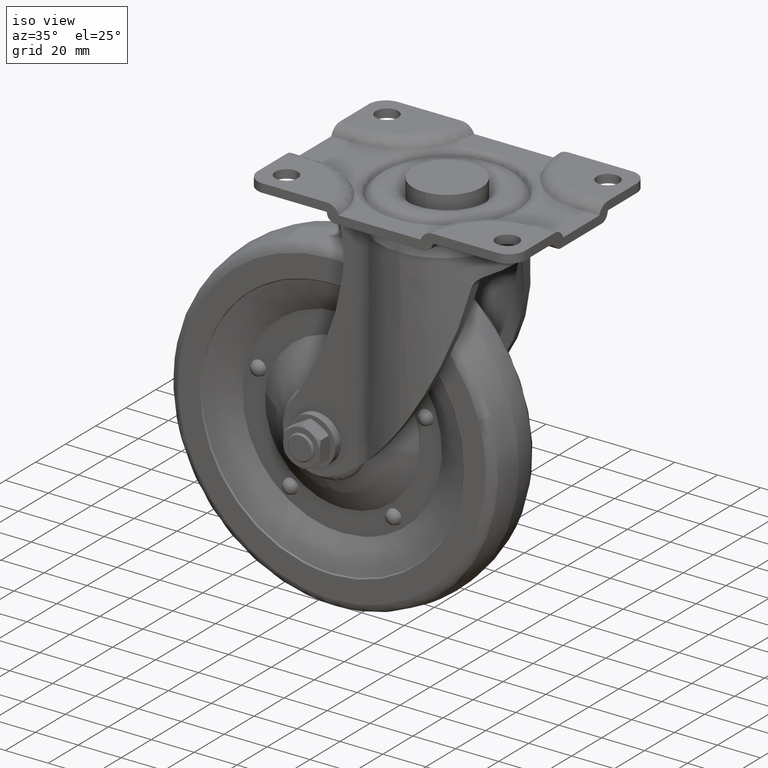
[diagram: clean part render]
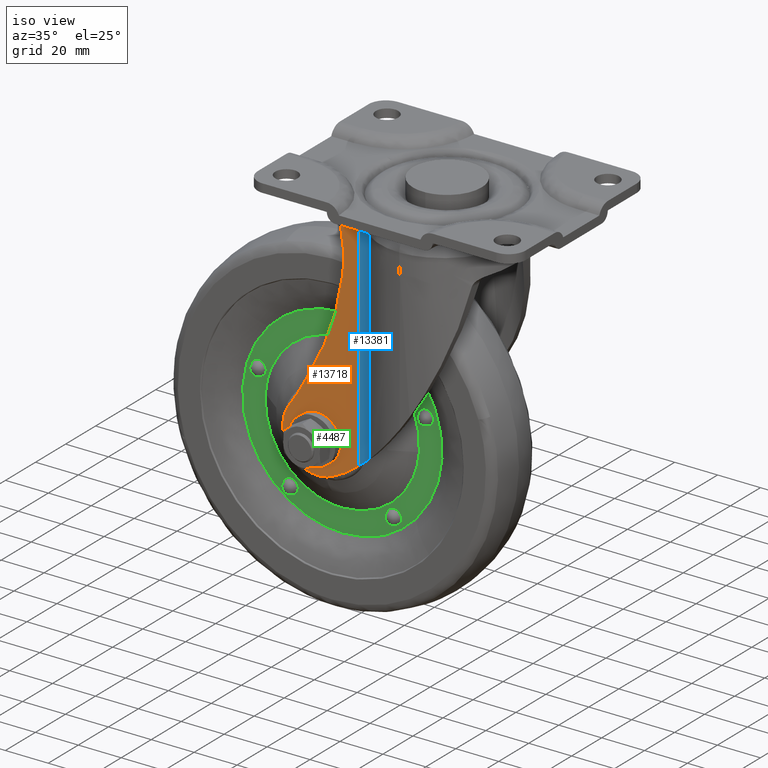
[diagram: same view with three faces highlighted in distinct colors, each labeled with its STEP entity id]
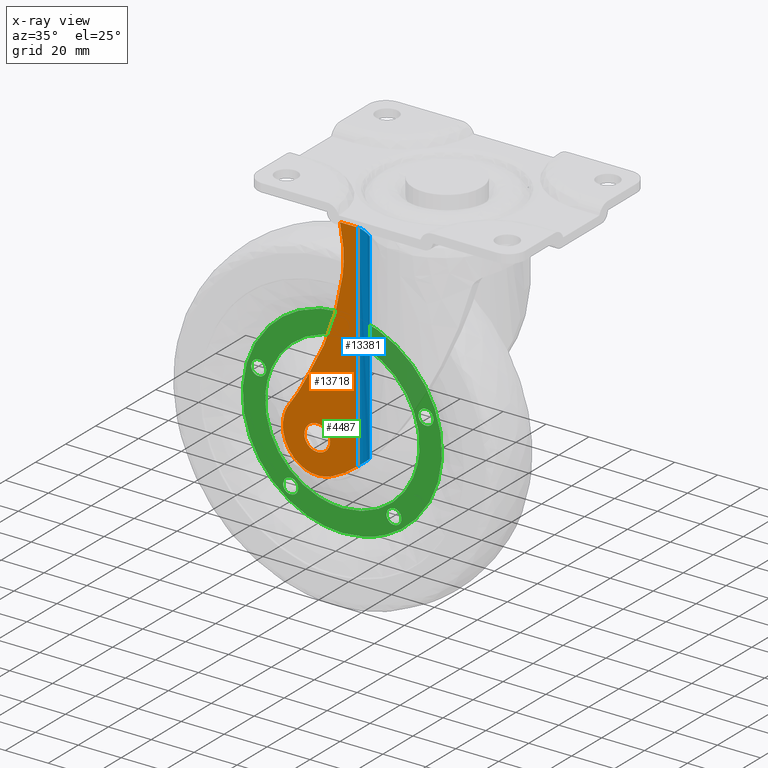
[diagram: x-ray of the same camera — body ghosted, the three highlighted faces saturated]
A machine part, iso view with three faces highlighted in distinct colors.
The next image is the same camera in x-ray (body ghosted, the three faces saturated) — at least one of them is partly hidden behind the body in this view.
Their STEP definitions:

[orange] entity #13718 — the highlighted face is a freeform B-spline surface patch.
#10194=CARTESIAN_POINT('',(-50.000999999999998,-23.722238212965209,-112.500000000000000));
#10195=VERTEX_POINT('',#10194);
#10196=CARTESIAN_POINT('',(-44.470833033914992,-23.719572744459128,-106.517499080303100));
#10197=VERTEX_POINT('',#10196);
#10198=CARTESIAN_POINT('',(-50.000999999999998,-23.722238212965209,-112.500000000000000));
#10199=CARTESIAN_POINT('',(-50.000999999999983,-23.722238212965205,-106.952732659979660));
#10200=CARTESIAN_POINT('',(-44.470833033914992,-23.719572744458972,-106.517499080303110));
#10208=(BOUNDED_CURVE()B_SPLINE_CURVE(2,(#10198,#10199,#10200),.UNSPECIFIED.,.F.,.U.)B_SPLINE_CURVE_WITH_KNOTS((3,3),(0.0,0.236331300619810),.UNSPECIFIED.)CURVE()GEOMETRIC_REPRESENTATION_ITEM()RATIONAL_B_SPLINE_CURVE((1.0,0.723120658620378,0.969723356144775))REPRESENTATION_ITEM(''));
#10209=EDGE_CURVE('',#10195,#10197,#10208,.T.);
#10211=CARTESIAN_POINT('',(-43.529166966085022,-23.719118873669270,-118.482500919696900));
#10212=VERTEX_POINT('',#10211);
#10213=CARTESIAN_POINT('',(-43.529166966085008,-23.719118873669430,-118.482500919696960));
#10214=CARTESIAN_POINT('',(-43.764220067619831,-23.719232166205309,-118.501000000000030));
#10215=CARTESIAN_POINT('',(-44.0,-23.719345809064201,-118.501000000000000));
#10216=CARTESIAN_POINT('',(-50.000999999999976,-23.722238212965209,-118.501000000000000));
#10217=CARTESIAN_POINT('',(-50.000999999999998,-23.722238212965209,-112.500000000000000));
#10225=(BOUNDED_CURVE()B_SPLINE_CURVE(2,(#10213,#10214,#10215,#10216,#10217),.UNSPECIFIED.,.F.,.U.)B_SPLINE_CURVE_WITH_KNOTS((3,2,3),(0.736331300619810,0.750000000000000,1.0),.UNSPECIFIED.)CURVE()GEOMETRIC_REPRESENTATION_ITEM()RATIONAL_B_SPLINE_CURVE((0.969723356144775,0.983986122566170,1.0,0.707106781186548,1.0))REPRESENTATION_ITEM(''));
#10226=EDGE_CURVE('',#10212,#10195,#10225,.T.);
#10293=CARTESIAN_POINT('',(-37.999000000000002,-23.716453405163190,-112.500000000000000));
#10294=VERTEX_POINT('',#10293);
#10295=CARTESIAN_POINT('',(-44.470833033915000,-23.719572744458976,-106.517499080303040));
#10296=CARTESIAN_POINT('',(-44.235779932380176,-23.719459451923090,-106.499000000000020));
#10297=CARTESIAN_POINT('',(-44.0,-23.719345809064201,-106.499000000000000));
#10298=CARTESIAN_POINT('',(-37.998999999999995,-23.716453405163186,-106.498999999999980));
#10299=CARTESIAN_POINT('',(-37.999000000000002,-23.716453405163190,-112.500000000000000));
#10307=(BOUNDED_CURVE()B_SPLINE_CURVE(2,(#10295,#10296,#10297,#10298,#10299),.UNSPECIFIED.,.F.,.U.)B_SPLINE_CURVE_WITH_KNOTS((3,2,3),(0.236331300619810,0.250000000000000,0.500000000000000),.UNSPECIFIED.)CURVE()GEOMETRIC_REPRESENTATION_ITEM()RATIONAL_B_SPLINE_CURVE((0.969723356144775,0.983986122566170,1.0,0.707106781186548,1.0))REPRESENTATION_ITEM(''));
#10308=EDGE_CURVE('',#10197,#10294,#10307,.T.);
#10342=CARTESIAN_POINT('',(-37.999000000000002,-23.716453405163190,-112.500000000000000));
#10343=CARTESIAN_POINT('',(-37.998999999999995,-23.716453405163190,-118.047267340020330));
#10344=CARTESIAN_POINT('',(-43.529166966085015,-23.719118873669427,-118.482500919696890));
#10352=(BOUNDED_CURVE()B_SPLINE_CURVE(2,(#10342,#10343,#10344),.UNSPECIFIED.,.F.,.U.)B_SPLINE_CURVE_WITH_KNOTS((3,3),(0.500000000000000,0.736331300619810),.UNSPECIFIED.)CURVE()GEOMETRIC_REPRESENTATION_ITEM()RATIONAL_B_SPLINE_CURVE((1.0,0.723120658620377,0.969723356144775))REPRESENTATION_ITEM(''));
#10353=EDGE_CURVE('',#10294,#10212,#10352,.T.);
#11462=CARTESIAN_POINT('',(-33.474773347300847,-23.714272786796350,-18.800000000000001));
#11463=VERTEX_POINT('',#11462);
#11495=CARTESIAN_POINT('',(-33.220387422355962,-23.714150176091248,-20.200238627534748));
#11496=VERTEX_POINT('',#11495);
#11502=CARTESIAN_POINT('',(-33.220387422355962,-23.714150176091248,-20.200238627534748));
#11503=CARTESIAN_POINT('',(-33.384632053834004,-23.714229339866034,-19.506850646848438));
#11504=CARTESIAN_POINT('',(-33.474773347300719,-23.714272786796350,-18.800000000000001));
#11512=(BOUNDED_CURVE()B_SPLINE_CURVE(2,(#11502,#11503,#11504),.UNSPECIFIED.,.F.,.U.)CURVE()GEOMETRIC_REPRESENTATION_ITEM()QUASI_UNIFORM_CURVE()RATIONAL_B_SPLINE_CURVE((1.0,0.998602557726876,1.0))REPRESENTATION_ITEM(''));
#11513=EDGE_CURVE('',#11496,#11463,#11512,.T.);
#11601=CARTESIAN_POINT('',(-32.208179906609352,-23.713662305241701,-41.071240209038450));
#11602=VERTEX_POINT('',#11601);
#11608=CARTESIAN_POINT('',(-33.220387422355998,-23.714150176091181,-20.200238627534748));
#11609=CARTESIAN_POINT('',(-30.770824674431974,-23.712969518726101,-30.541485015181134));
#11610=CARTESIAN_POINT('',(-32.208179906609338,-23.713662305241790,-41.071240209038152));
#11618=(BOUNDED_CURVE()B_SPLINE_CURVE(2,(#11608,#11609,#11610),.UNSPECIFIED.,.F.,.U.)CURVE()GEOMETRIC_REPRESENTATION_ITEM()QUASI_UNIFORM_CURVE()RATIONAL_B_SPLINE_CURVE((1.0,0.983096652336965,1.0))REPRESENTATION_ITEM(''));
#11619=EDGE_CURVE('',#11496,#11602,#11618,.T.);
#11707=CARTESIAN_POINT('',(-48.233338139935213,-23.721386222953502,-87.127121802990899));
#11708=VERTEX_POINT('',#11707);
#11714=CARTESIAN_POINT('',(-32.208179906609352,-23.713662305241701,-41.071240209038450));
#11715=CARTESIAN_POINT('',(-35.572371221970421,-23.715283801673024,-65.716589139129226));
#11716=CARTESIAN_POINT('',(-48.233338139935213,-23.721386222953502,-87.127121802990899));
#11724=(BOUNDED_CURVE()B_SPLINE_CURVE(2,(#11714,#11715,#11716),.UNSPECIFIED.,.F.,.U.)CURVE()GEOMETRIC_REPRESENTATION_ITEM()QUASI_UNIFORM_CURVE()RATIONAL_B_SPLINE_CURVE((1.0,0.980228754763720,1.0))REPRESENTATION_ITEM(''));
#11725=EDGE_CURVE('',#11602,#11708,#11724,.T.);
#11813=CARTESIAN_POINT('',(-57.959273022513003,-23.726073996990451,-103.307275449450800));
#11814=VERTEX_POINT('',#11813);
#11820=CARTESIAN_POINT('',(-48.233338139935213,-23.721386222953502,-87.127121802990899));
#11821=CARTESIAN_POINT('',(-52.496599988244910,-23.723441059680919,-95.577683142427830));
#11822=CARTESIAN_POINT('',(-57.959272530696602,-23.726073996753360,-103.307275449450800));
#11830=(BOUNDED_CURVE()B_SPLINE_CURVE(2,(#11820,#11821,#11822),.UNSPECIFIED.,.F.,.U.)CURVE()GEOMETRIC_REPRESENTATION_ITEM()QUASI_UNIFORM_CURVE()RATIONAL_B_SPLINE_CURVE((1.0,0.997263753623928,1.0))REPRESENTATION_ITEM(''));
#11831=EDGE_CURVE('',#11708,#11814,#11830,.T.);
#11903=CARTESIAN_POINT('',(-52.101891605436698,-23.723250815377298,-125.953898225679000));
#11904=VERTEX_POINT('',#11903);
#11905=CARTESIAN_POINT('',(-52.101891605436698,-23.723250815377298,-125.953898225679000));
#11906=CARTESIAN_POINT('',(-65.696403467355694,-23.729803193171271,-117.389222832711280));
#11907=CARTESIAN_POINT('',(-57.959273022513003,-23.726073996990419,-103.307275449451100));
#11915=(BOUNDED_CURVE()B_SPLINE_CURVE(2,(#11905,#11906,#11907),.UNSPECIFIED.,.F.,.U.)CURVE()GEOMETRIC_REPRESENTATION_ITEM()QUASI_UNIFORM_CURVE()RATIONAL_B_SPLINE_CURVE((1.0,0.727924426400817,1.0))REPRESENTATION_ITEM(''));
#11916=EDGE_CURVE('',#11904,#11814,#11915,.T.);
#12009=CARTESIAN_POINT('',(-36.208002370455603,-23.715590167614248,-126.457514888627200));
#12010=VERTEX_POINT('',#12009);
#12011=CARTESIAN_POINT('',(-36.208002370455603,-23.715590167614248,-126.457514888627200));
#12012=CARTESIAN_POINT('',(-44.302660923529935,-23.719491687690283,-130.867489857980160));
#12013=CARTESIAN_POINT('',(-52.101891605436677,-23.723250815377209,-125.953898225679000));
#12021=(BOUNDED_CURVE()B_SPLINE_CURVE(2,(#12011,#12012,#12013),.UNSPECIFIED.,.F.,.U.)CURVE()GEOMETRIC_REPRESENTATION_ITEM()QUASI_UNIFORM_CURVE()RATIONAL_B_SPLINE_CURVE((1.0,0.862545005258443,1.0))REPRESENTATION_ITEM(''));
#12022=EDGE_CURVE('',#12010,#11904,#12021,.T.);
#12115=CARTESIAN_POINT('',(-31.133920985200049,-23.713144526422351,-123.789671572339400));
#12116=VERTEX_POINT('',#12115);
#12117=CARTESIAN_POINT('',(-31.133920985200060,-23.713144526422351,-123.789671572339400));
#12118=CARTESIAN_POINT('',(-33.569545817006784,-23.714318465893257,-125.316480244656700));
#12119=CARTESIAN_POINT('',(-36.208002370455461,-23.715590167614270,-126.457514888627200));
#12127=(BOUNDED_CURVE()B_SPLINE_CURVE(2,(#12117,#12118,#12119),.UNSPECIFIED.,.F.,.U.)CURVE()GEOMETRIC_REPRESENTATION_ITEM()QUASI_UNIFORM_CURVE()RATIONAL_B_SPLINE_CURVE((1.0,0.997122314548111,1.0))REPRESENTATION_ITEM(''));
#12128=EDGE_CURVE('',#12116,#12010,#12127,.T.);
#13101=CARTESIAN_POINT('',(-24.846352573767749,-23.710114000276551,-18.800000000000001));
#13102=VERTEX_POINT('',#13101);
#13155=CARTESIAN_POINT('',(-24.846352573767749,-23.710114000276551,-18.800000000000001));
#13156=CARTESIAN_POINT('',(-33.474773347300847,-23.714272786796350,-18.800000000000001));
#13157=QUASI_UNIFORM_CURVE('',1,(#13155,#13156),.UNSPECIFIED.,.F.,.U.);
#13158=EDGE_CURVE('',#13102,#11463,#13157,.T.);
#13355=CARTESIAN_POINT('',(-24.846352573767700,-23.710114000276551,-119.269769394863600));
#13356=VERTEX_POINT('',#13355);
#13357=CARTESIAN_POINT('',(-24.846352573767700,-23.710114000276551,-119.269769394863600));
#13358=CARTESIAN_POINT('',(-24.846352573767749,-23.710114000276551,-18.800000000000001));
#13359=QUASI_UNIFORM_CURVE('',1,(#13357,#13358),.UNSPECIFIED.,.F.,.U.);
#13360=EDGE_CURVE('',#13356,#13102,#13359,.T.);
#13683=CARTESIAN_POINT('',(-23.087070984716970,-23.709266049446519,-133.845494408536690));
#13684=CARTESIAN_POINT('',(-61.826489107436750,-23.727937944814109,-133.845494408536690));
#13685=CARTESIAN_POINT('',(-23.087070984716970,-23.709266049446519,-13.326858118002560));
#13686=CARTESIAN_POINT('',(-61.826489107436750,-23.727937944814109,-13.326858118002560));
#13687=B_SPLINE_SURFACE_WITH_KNOTS('',1,1,((#13683,#13685),(#13684,#13686)),.UNSPECIFIED.,.F.,.F.,.U.,(2,2),(2,2),(0.0,38.739422622524792),(0.0,120.518636290534100),.UNSPECIFIED.);
#13688=ORIENTED_EDGE('',*,*,#13360,.T.);
#13689=ORIENTED_EDGE('',*,*,#13158,.T.);
#13690=ORIENTED_EDGE('',*,*,#11513,.F.);
#13691=ORIENTED_EDGE('',*,*,#11619,.T.);
#13692=ORIENTED_EDGE('',*,*,#11725,.T.);
#13693=ORIENTED_EDGE('',*,*,#11831,.T.);
#13694=ORIENTED_EDGE('',*,*,#11916,.F.);
#13695=ORIENTED_EDGE('',*,*,#12022,.F.);
#13696=ORIENTED_EDGE('',*,*,#12128,.F.);
#13697=CARTESIAN_POINT('',(-24.846352573767589,-23.710114000276569,-119.269769394863600));
#13698=CARTESIAN_POINT('',(-27.922632471548123,-23.711596727151580,-121.623624718150440));
#13699=CARTESIAN_POINT('',(-31.133920985199971,-23.713144526422390,-123.789671572339400));
#13707=(BOUNDED_CURVE()B_SPLINE_CURVE(2,(#13697,#13698,#13699),.UNSPECIFIED.,.F.,.U.)CURVE()GEOMETRIC_REPRESENTATION_ITEM()QUASI_UNIFORM_CURVE()RATIONAL_B_SPLINE_CURVE((1.0,0.999554195537226,1.0))REPRESENTATION_ITEM(''));
#13708=EDGE_CURVE('',#13356,#12116,#13707,.T.);
#13709=ORIENTED_EDGE('',*,*,#13708,.F.);
#13710=EDGE_LOOP('',(#13688,#13689,#13690,#13691,#13692,#13693,#13694,#13695,#13696,#13709));
#13711=FACE_OUTER_BOUND('',#13710,.T.);
#13712=ORIENTED_EDGE('',*,*,#10353,.T.);
#13713=ORIENTED_EDGE('',*,*,#10226,.T.);
#13714=ORIENTED_EDGE('',*,*,#10209,.T.);
#13715=ORIENTED_EDGE('',*,*,#10308,.T.);
#13716=EDGE_LOOP('',(#13712,#13713,#13714,#13715));
#13717=FACE_BOUND('',#13716,.T.);
#13718=ADVANCED_FACE('',(#13711,#13717),#13687,.F.);

[blue] entity #13381 — the highlighted face is a freeform B-spline surface patch.
#13028=CARTESIAN_POINT('',(-17.988086873891149,-25.859047059812749,-19.800000000000001));
#13029=VERTEX_POINT('',#13028);
#13101=CARTESIAN_POINT('',(-24.846352573767749,-23.710114000276551,-18.800000000000001));
#13102=VERTEX_POINT('',#13101);
#13116=CARTESIAN_POINT('',(-17.988086873891149,-25.859047059812749,-19.800000000000001));
#13117=CARTESIAN_POINT('',(-18.082739542925811,-25.793212710228541,-19.798629378533931));
#13118=CARTESIAN_POINT('',(-18.242086296300052,-25.685705538493909,-19.796499994660248));
#13119=CARTESIAN_POINT('',(-18.856763765088839,-25.292504927499859,-19.759029759211391));
#13120=CARTESIAN_POINT('',(-19.429927879434729,-24.985378432937392,-19.673115326289839));
#13121=CARTESIAN_POINT('',(-20.189474226467471,-24.644682726173670,-19.524912561331671));
#13122=CARTESIAN_POINT('',(-20.889608510286340,-24.361778073768640,-19.378207407132180));
#13123=CARTESIAN_POINT('',(-22.044213737864450,-24.012037985834120,-19.128918172890049));
#13124=CARTESIAN_POINT('',(-23.014060378983551,-23.839045567464140,-18.948438718595959));
#13125=CARTESIAN_POINT('',(-23.621363272377131,-23.771966269264251,-18.875517107857451));
#13126=CARTESIAN_POINT('',(-23.925533556721110,-23.742802847470621,-18.841596655670831));
#13127=CARTESIAN_POINT('',(-24.270055188239802,-23.721312016110790,-18.814526421018840));
#13128=CARTESIAN_POINT('',(-24.615774767755479,-23.711443660980191,-18.804845194350101));
#13129=CARTESIAN_POINT('',(-24.769482183815430,-23.710080243383551,-18.801208378814639));
#13130=CARTESIAN_POINT('',(-24.846352573767749,-23.710114000276551,-18.800000000000001));
#13131=B_SPLINE_CURVE_WITH_KNOTS('',3,(#13116,#13117,#13118,#13119,#13120,#13121,#13122,#13123,#13124,#13125,#13126,#13127,#13128,#13129,#13130),.UNSPECIFIED.,.F.,.U.,(4,1,1,1,1,1,1,1,1,1,1,1,4),(0.000013214462248,0.345966288872900,0.576603538985090,2.191056348619183,2.306371475345844,3.113592082591532,4.497408836906303,5.996540298903226,6.111861381388584,6.342495383444319,6.919081648692941,7.149716420930449,7.380350429236879),.UNSPECIFIED.);
#13132=EDGE_CURVE('',#13029,#13102,#13131,.T.);
#13333=CARTESIAN_POINT('',(-25.191792438727830,-23.715253628210110,-121.781513629735200));
#13334=CARTESIAN_POINT('',(-25.191792438727830,-23.715253628210110,-16.225462159256612));
#13335=CARTESIAN_POINT('',(-21.036223239862881,-23.593573629636392,-121.781513629735230));
#13336=CARTESIAN_POINT('',(-21.036223239862881,-23.593573629636392,-16.225462159256608));
#13337=CARTESIAN_POINT('',(-17.696020942208651,-26.068772611406011,-121.781513629735190));
#13338=CARTESIAN_POINT('',(-17.696020942208651,-26.068772611406011,-16.225462159256615));
#13346=(BOUNDED_SURFACE()B_SPLINE_SURFACE(1,2,((#13333,#13335,#13337),(#13334,#13336,#13338)),.UNSPECIFIED.,.F.,.F.,.U.)B_SPLINE_SURFACE_WITH_KNOTS((2,2),(3,3),(0.0,105.556051470478590),(0.0,8.079109483346606),.UNSPECIFIED.)GEOMETRIC_REPRESENTATION_ITEM()RATIONAL_B_SPLINE_SURFACE(((1.0,0.941045728231928,0.991857011863724),(1.0,0.941045728231928,0.991857011863724)))REPRESENTATION_ITEM('')SURFACE());
#13347=CARTESIAN_POINT('',(-17.988086873891149,-25.859047059812749,-113.639846801508200));
#13348=VERTEX_POINT('',#13347);
#13349=CARTESIAN_POINT('',(-17.988086873891149,-25.859047059812749,-19.800000000000001));
#13350=CARTESIAN_POINT('',(-17.988086873891149,-25.859047059812749,-113.639846801508200));
#13351=QUASI_UNIFORM_CURVE('',1,(#13349,#13350),.UNSPECIFIED.,.F.,.U.);
#13352=EDGE_CURVE('',#13029,#13348,#13351,.T.);
#13353=ORIENTED_EDGE('',*,*,#13352,.F.);
#13354=ORIENTED_EDGE('',*,*,#13132,.T.);
#13355=CARTESIAN_POINT('',(-24.846352573767700,-23.710114000276551,-119.269769394863600));
#13356=VERTEX_POINT('',#13355);
#13357=CARTESIAN_POINT('',(-24.846352573767700,-23.710114000276551,-119.269769394863600));
#13358=CARTESIAN_POINT('',(-24.846352573767749,-23.710114000276551,-18.800000000000001));
#13359=QUASI_UNIFORM_CURVE('',1,(#13357,#13358),.UNSPECIFIED.,.F.,.U.);
#13360=EDGE_CURVE('',#13356,#13102,#13359,.T.);
#13361=ORIENTED_EDGE('',*,*,#13360,.F.);
#13362=CARTESIAN_POINT('',(-17.988086873891149,-25.859047059812749,-113.639846801508200));
#13363=CARTESIAN_POINT('',(-18.503013529105161,-25.500859862122741,-114.092905951709600));
#13364=CARTESIAN_POINT('',(-19.033456581708709,-25.191300198795691,-114.552361744802700));
#13365=CARTESIAN_POINT('',(-20.123803873867288,-24.659316469357240,-115.480764921571510));
#13366=CARTESIAN_POINT('',(-20.683726481615238,-24.436983357826410,-115.949736937058600));
#13367=CARTESIAN_POINT('',(-21.546006244700131,-24.167298687740260,-116.659171880281800));
#13368=CARTESIAN_POINT('',(-21.837178727063861,-24.088092228040399,-116.896657464340810));
#13369=CARTESIAN_POINT('',(-22.279710723376439,-23.985568540051780,-117.254342579544800));
#13370=CARTESIAN_POINT('',(-22.428361871196980,-23.954080387134571,-117.373955924147690));
#13371=CARTESIAN_POINT('',(-22.726463425324969,-23.896832188532500,-117.612738237564500));
#13372=CARTESIAN_POINT('',(-22.875953038527829,-23.871054778352381,-117.731940410328410));
#13373=CARTESIAN_POINT('',(-23.625602603847959,-23.756370995979989,-118.326993094351000));
#13374=CARTESIAN_POINT('',(-24.232350023793490,-23.709818059038341,-118.799957408050700));
#13375=CARTESIAN_POINT('',(-24.846352573767799,-23.710114000276601,-119.269769394863600));
#13376=B_SPLINE_CURVE_WITH_KNOTS('',3,(#13362,#13363,#13364,#13365,#13366,#13367,#13368,#13369,#13370,#13371,#13372,#13373,#13374,#13375),.UNSPECIFIED.,.F.,.U.,(4,2,2,2,2,2,4),(0.0,0.249999999999995,0.499999999999990,0.624999999999989,0.687499999999989,0.749999999999990,1.0),.UNSPECIFIED.);
#13377=EDGE_CURVE('',#13348,#13356,#13376,.T.);
#13378=ORIENTED_EDGE('',*,*,#13377,.F.);
#13379=EDGE_LOOP('',(#13353,#13354,#13361,#13378));
#13380=FACE_OUTER_BOUND('',#13379,.T.);
#13381=ADVANCED_FACE('',(#13380),#13346,.F.);

[green] entity #4487 — the highlighted face is a freeform B-spline surface patch.
#1874=CARTESIAN_POINT('',(-79.889024014395218,-6.999999999995756,-109.675472553754400));
#1875=VERTEX_POINT('',#1874);
#1881=CARTESIAN_POINT('',(-44.0,-7.0,-148.500000000000000));
#1882=VERTEX_POINT('',#1881);
#1883=CARTESIAN_POINT('',(-79.889024014395218,-6.999999999995756,-109.675472553754430));
#1884=CARTESIAN_POINT('',(-80.000000000005855,-6.999999999995832,-111.085556147702010));
#1885=CARTESIAN_POINT('',(-80.000000000005741,-6.999999999995916,-112.499999999999600));
#1886=CARTESIAN_POINT('',(-80.000000000002743,-6.999999999998039,-148.499999999999860));
#1887=CARTESIAN_POINT('',(-44.0,-7.0,-148.500000000000000));
#1895=(BOUNDED_CURVE()B_SPLINE_CURVE(2,(#1883,#1884,#1885,#1886,#1887),.UNSPECIFIED.,.F.,.U.)B_SPLINE_CURVE_WITH_KNOTS((3,2,3),(0.736331300632563,0.750000000000000,1.0),.UNSPECIFIED.)CURVE()GEOMETRIC_REPRESENTATION_ITEM()RATIONAL_B_SPLINE_CURVE((0.969723356171390,0.983986122581112,1.0,0.707106781186547,1.0))REPRESENTATION_ITEM(''));
#1896=EDGE_CURVE('',#1875,#1882,#1895,.T.);
#1898=CARTESIAN_POINT('',(-8.110975985604782,-6.999999999995758,-115.324527446245600));
#1899=VERTEX_POINT('',#1898);
#1900=CARTESIAN_POINT('',(-44.0,-7.0,-148.500000000000000));
#1901=CARTESIAN_POINT('',(-10.721942300341267,-6.999999999997880,-148.500000000000280));
#1902=CARTESIAN_POINT('',(-8.110975985604782,-6.999999999995758,-115.324527446245550));
#1910=(BOUNDED_CURVE()B_SPLINE_CURVE(2,(#1900,#1901,#1902),.UNSPECIFIED.,.F.,.U.)B_SPLINE_CURVE_WITH_KNOTS((3,3),(0.0,0.236331300632563),.UNSPECIFIED.)CURVE()GEOMETRIC_REPRESENTATION_ITEM()RATIONAL_B_SPLINE_CURVE((1.0,0.723120658605436,0.969723356171390))REPRESENTATION_ITEM(''));
#1911=EDGE_CURVE('',#1882,#1899,#1910,.T.);
#1941=CARTESIAN_POINT('',(-44.0,-7.0,-76.500000000000014));
#1942=VERTEX_POINT('',#1941);
#1943=CARTESIAN_POINT('',(-8.110975985604782,-6.999999999995758,-115.324527446245550));
#1944=CARTESIAN_POINT('',(-7.999999999994131,-6.999999999995836,-113.914443852298020));
#1945=CARTESIAN_POINT('',(-7.999999999994252,-6.999999999995920,-112.500000000000400));
#1946=CARTESIAN_POINT('',(-7.999999999997235,-6.999999999998039,-76.500000000000227));
#1947=CARTESIAN_POINT('',(-44.0,-7.0,-76.500000000000014));
#1955=(BOUNDED_CURVE()B_SPLINE_CURVE(2,(#1943,#1944,#1945,#1946,#1947),.UNSPECIFIED.,.F.,.U.)B_SPLINE_CURVE_WITH_KNOTS((3,2,3),(0.236331300632563,0.250000000000000,0.500000000000000),.UNSPECIFIED.)CURVE()GEOMETRIC_REPRESENTATION_ITEM()RATIONAL_B_SPLINE_CURVE((0.969723356171390,0.983986122581112,1.0,0.707106781186547,1.0))REPRESENTATION_ITEM(''));
#1956=EDGE_CURVE('',#1899,#1942,#1955,.T.);
#1958=CARTESIAN_POINT('',(-44.0,-7.0,-76.500000000000014));
#1959=CARTESIAN_POINT('',(-77.278057699658746,-6.999999999997880,-76.499999999999773));
#1960=CARTESIAN_POINT('',(-79.889024014395218,-6.999999999995756,-109.675472553754420));
#1968=(BOUNDED_CURVE()B_SPLINE_CURVE(2,(#1958,#1959,#1960),.UNSPECIFIED.,.F.,.U.)B_SPLINE_CURVE_WITH_KNOTS((3,3),(0.500000000000000,0.736331300632563),.UNSPECIFIED.)CURVE()GEOMETRIC_REPRESENTATION_ITEM()RATIONAL_B_SPLINE_CURVE((1.0,0.723120658605436,0.969723356171390))REPRESENTATION_ITEM(''));
#1969=EDGE_CURVE('',#1942,#1875,#1968,.T.);
#3895=CARTESIAN_POINT('',(-78.294359957395329,-7.000000000299899,-81.097024422116888));
#3896=VERTEX_POINT('',#3895);
#3910=CARTESIAN_POINT('',(-44.0,-7.0,-66.0));
#3911=VERTEX_POINT('',#3910);
#3912=CARTESIAN_POINT('',(-44.0,-7.0,-66.0));
#3913=CARTESIAN_POINT('',(-64.470177502109522,-7.000000000149950,-65.999999999881908));
#3914=CARTESIAN_POINT('',(-78.294359957395329,-7.000000000299899,-81.097024422116888));
#3922=(BOUNDED_CURVE()B_SPLINE_CURVE(2,(#3912,#3913,#3914),.UNSPECIFIED.,.F.,.U.)B_SPLINE_CURVE_WITH_KNOTS((3,3),(0.500000000000000,0.631637486163450),.UNSPECIFIED.)CURVE()GEOMETRIC_REPRESENTATION_ITEM()RATIONAL_B_SPLINE_CURVE((1.0,0.845777091844303,0.853966311196067))REPRESENTATION_ITEM(''));
#3923=EDGE_CURVE('',#3911,#3896,#3922,.T.);
#3925=CARTESIAN_POINT('',(-9.705640042604699,-7.000000000299895,-143.902975577883100));
#3926=VERTEX_POINT('',#3925);
#3927=CARTESIAN_POINT('',(-9.705640042604699,-7.000000000299896,-143.902975577883150));
#3928=CARTESIAN_POINT('',(2.500000000235857,-7.000000000274241,-130.573518561848940));
#3929=CARTESIAN_POINT('',(2.500000000185729,-7.000000000215958,-112.500000000170100));
#3930=CARTESIAN_POINT('',(2.500000000056773,-7.000000000066009,-66.000000000051983));
#3931=CARTESIAN_POINT('',(-44.0,-7.0,-66.0));
#3939=(BOUNDED_CURVE()B_SPLINE_CURVE(2,(#3927,#3928,#3929,#3930,#3931),.UNSPECIFIED.,.F.,.U.)B_SPLINE_CURVE_WITH_KNOTS((3,2,3),(0.131637486163450,0.250000000000000,0.500000000000000),.UNSPECIFIED.)CURVE()GEOMETRIC_REPRESENTATION_ITEM()RATIONAL_B_SPLINE_CURVE((0.853966311196067,0.861329689342244,1.0,0.707106781186547,1.0))REPRESENTATION_ITEM(''));
#3940=EDGE_CURVE('',#3926,#3911,#3939,.T.);
#3983=CARTESIAN_POINT('',(-44.0,-6.999999999999930,-159.000000000000110));
#3984=VERTEX_POINT('',#3983);
#3985=CARTESIAN_POINT('',(-44.0,-6.999999999999930,-159.000000000000110));
#3986=CARTESIAN_POINT('',(-23.529822497890500,-7.000000000149912,-159.000000000118060));
#3987=CARTESIAN_POINT('',(-9.705640042604699,-7.000000000299896,-143.902975577883150));
#3995=(BOUNDED_CURVE()B_SPLINE_CURVE(2,(#3985,#3986,#3987),.UNSPECIFIED.,.F.,.U.)B_SPLINE_CURVE_WITH_KNOTS((3,3),(0.0,0.131637486163450),.UNSPECIFIED.)CURVE()GEOMETRIC_REPRESENTATION_ITEM()RATIONAL_B_SPLINE_CURVE((1.0,0.845777091844303,0.853966311196067))REPRESENTATION_ITEM(''));
#3996=EDGE_CURVE('',#3984,#3926,#3995,.T.);
#3998=CARTESIAN_POINT('',(-78.294359957395329,-7.000000000299899,-81.097024422116888));
#3999=CARTESIAN_POINT('',(-90.500000000235843,-7.000000000274237,-94.426481438151001));
#4000=CARTESIAN_POINT('',(-90.500000000185722,-7.000000000215941,-112.499999999830000));
#4001=CARTESIAN_POINT('',(-90.500000000056758,-7.000000000065956,-158.999999999948050));
#4002=CARTESIAN_POINT('',(-44.0,-6.999999999999930,-159.000000000000110));
#4010=(BOUNDED_CURVE()B_SPLINE_CURVE(2,(#3998,#3999,#4000,#4001,#4002),.UNSPECIFIED.,.F.,.U.)B_SPLINE_CURVE_WITH_KNOTS((3,2,3),(0.631637486163450,0.750000000000000,1.0),.UNSPECIFIED.)CURVE()GEOMETRIC_REPRESENTATION_ITEM()RATIONAL_B_SPLINE_CURVE((0.853966311196067,0.861329689342244,1.0,0.707106781186547,1.0))REPRESENTATION_ITEM(''));
#4011=EDGE_CURVE('',#3896,#3984,#4010,.T.);
#4063=CARTESIAN_POINT('',(-82.993317168101399,-6.999999999999920,-103.330303230627190));
#4064=VERTEX_POINT('',#4063);
#4065=CARTESIAN_POINT('',(-82.993317168101399,-6.999999999999920,-96.330303230627038));
#4066=VERTEX_POINT('',#4065);
#4067=CARTESIAN_POINT('',(-82.993317168101399,-6.999999999999920,-103.330303230627190));
#4068=CARTESIAN_POINT('',(-82.506426840828652,-6.999999999999919,-103.330928593857710));
#4069=CARTESIAN_POINT('',(-81.819751154821347,-6.999999999999925,-103.184593050563610));
#4070=CARTESIAN_POINT('',(-80.963688977185200,-6.999999999999912,-102.713238197844800));
#4071=CARTESIAN_POINT('',(-80.439359431519023,-6.999999999999929,-102.260998662049300));
#4072=CARTESIAN_POINT('',(-79.986917246673841,-6.999999999999935,-101.666248524513700));
#4073=CARTESIAN_POINT('',(-79.632984665274876,-6.999999999999909,-100.941344019775800));
#4074=CARTESIAN_POINT('',(-79.435197738156447,-6.999999999999935,-99.947759797686942));
#4075=CARTESIAN_POINT('',(-79.573843335923698,-6.999999999999922,-98.822942284508059));
#4076=CARTESIAN_POINT('',(-80.057393483549461,-6.999999999999918,-97.832697471372256));
#4077=CARTESIAN_POINT('',(-80.765435246125861,-6.999999999999923,-97.070451879268788));
#4078=CARTESIAN_POINT('',(-81.733761785404212,-6.999999999999912,-96.490075409012931));
#4079=CARTESIAN_POINT('',(-82.535122538850260,-6.999999999999922,-96.329810330423300));
#4080=CARTESIAN_POINT('',(-82.993317168101399,-6.999999999999920,-96.330303230627038));
#4081=B_SPLINE_CURVE_WITH_KNOTS('',3,(#4067,#4068,#4069,#4070,#4071,#4072,#4073,#4074,#4075,#4076,#4077,#4078,#4079,#4080),.UNSPECIFIED.,.F.,.U.,(4,1,1,1,1,1,1,1,1,1,1,4),(0.000000716881750,1.460311387864348,2.061721312218836,2.920785672660941,3.522158739210378,4.295327570768851,5.326182265254883,6.528704039561911,7.645513248127562,8.590516740862078,9.621454824082978,10.995850211743109),.UNSPECIFIED.);
#4082=EDGE_CURVE('',#4064,#4066,#4081,.T.);
#4084=CARTESIAN_POINT('',(-82.993317168101399,-6.999999999999920,-96.330303230627038));
#4085=CARTESIAN_POINT('',(-83.422855188080177,-6.999999999999921,-96.330007822024825));
#4086=CARTESIAN_POINT('',(-84.281687634200864,-6.999999999999924,-96.490325241623268));
#4087=CARTESIAN_POINT('',(-85.248697306968864,-6.999999999999932,-97.086000090615073));
#4088=CARTESIAN_POINT('',(-85.840024853585192,-6.999999999999892,-97.755441920754748));
#4089=CARTESIAN_POINT('',(-86.201870996764114,-6.999999999999989,-98.376169816702642));
#4090=CARTESIAN_POINT('',(-86.436180204159328,-6.999999999999899,-99.057212403871873));
#4091=CARTESIAN_POINT('',(-86.518713283216442,-6.999999999999773,-99.801669791254668));
#4092=CARTESIAN_POINT('',(-86.448152047724804,-7.000000000000087,-100.517456397417500));
#4093=CARTESIAN_POINT('',(-86.189595478204282,-6.999999999999830,-101.371195309279000));
#4094=CARTESIAN_POINT('',(-85.633752751001936,-6.999999999999925,-102.225570535777610));
#4095=CARTESIAN_POINT('',(-84.857618369767891,-6.999999999999918,-102.830842910238500));
#4096=CARTESIAN_POINT('',(-83.995316625295970,-6.999999999999933,-103.225825203529100));
#4097=CARTESIAN_POINT('',(-83.394232296362304,-6.999999999999866,-103.330586287356600));
#4098=CARTESIAN_POINT('',(-82.993317168101399,-6.999999999999920,-103.330303230627190));
#4099=B_SPLINE_CURVE_WITH_KNOTS('',3,(#4084,#4085,#4086,#4087,#4088,#4089,#4090,#4091,#4092,#4093,#4094,#4095,#4096,#4097,#4098),.UNSPECIFIED.,.F.,.U.,(4,1,1,1,1,1,1,1,1,1,1,1,4),(0.000000716958811,1.288553481676562,2.577148631634460,3.350329781614399,3.951708358583312,4.724799527138461,5.497925435702150,6.185144539180972,6.872320823192696,8.160979449438459,9.191904862667048,9.793215092401892,10.995850211742370),.UNSPECIFIED.);
#4100=EDGE_CURVE('',#4066,#4064,#4099,.T.);
#4149=CARTESIAN_POINT('',(-68.099195343991454,-6.999999999999920,-149.169696769373100));
#4150=VERTEX_POINT('',#4149);
#4151=CARTESIAN_POINT('',(-68.099195343991454,-6.999999999999920,-142.169696769372910));
#4152=VERTEX_POINT('',#4151);
#4153=CARTESIAN_POINT('',(-68.099195343991454,-6.999999999999920,-149.169696769373100));
#4154=CARTESIAN_POINT('',(-67.698295789566416,-6.999999999999932,-149.169954980379000));
#4155=CARTESIAN_POINT('',(-67.039903499981222,-6.999999999999896,-149.055286444723690));
#4156=CARTESIAN_POINT('',(-66.263231355653090,-6.999999999999954,-148.676092747057710));
#4157=CARTESIAN_POINT('',(-65.645607320494875,-6.999999999999875,-148.206236195068100));
#4158=CARTESIAN_POINT('',(-65.087412991999940,-6.999999999999973,-147.542975765193400));
#4159=CARTESIAN_POINT('',(-64.641439105186876,-6.999999999999900,-146.537425392589990));
#4160=CARTESIAN_POINT('',(-64.541485117348671,-6.999999999999906,-145.376893831620290));
#4161=CARTESIAN_POINT('',(-64.844644185608743,-6.999999999999952,-144.227137193608800));
#4162=CARTESIAN_POINT('',(-65.429846779470878,-6.999999999999919,-143.327647113705210));
#4163=CARTESIAN_POINT('',(-66.159617330472372,-6.999999999999902,-142.713794466712390));
#4164=CARTESIAN_POINT('',(-67.039931151457765,-6.999999999999943,-142.284171526768690));
#4165=CARTESIAN_POINT('',(-67.698277077013387,-6.999999999999875,-142.169402102038790));
#4166=CARTESIAN_POINT('',(-68.099195343991454,-6.999999999999920,-142.169696769372910));
#4167=B_SPLINE_CURVE_WITH_KNOTS('',3,(#4153,#4154,#4155,#4156,#4157,#4158,#4159,#4160,#4161,#4162,#4163,#4164,#4165,#4166),.UNSPECIFIED.,.F.,.U.,(4,1,1,1,1,1,1,1,1,1,1,4),(0.000000716987783,1.202626324494775,1.975791420182040,2.577148631654168,3.522158739287376,4.553048990842807,5.841419408245059,6.958241951833157,8.075066360353240,9.020043230736810,9.793215092404324,10.995850211742241),.UNSPECIFIED.);
#4168=EDGE_CURVE('',#4150,#4152,#4167,.T.);
#4170=CARTESIAN_POINT('',(-68.099195343991454,-6.999999999999920,-142.169696769372910));
#4171=CARTESIAN_POINT('',(-68.356879724227440,-6.999999999999922,-142.169655729675100));
#4172=CARTESIAN_POINT('',(-68.900898748090896,-6.999999999999918,-142.230054266215010));
#4173=CARTESIAN_POINT('',(-69.797468979261680,-6.999999999999912,-142.550530044306210));
#4174=CARTESIAN_POINT('',(-70.614383474823768,-6.999999999999959,-143.156417945258800));
#4175=CARTESIAN_POINT('',(-71.189791076131556,-6.999999999999853,-143.952858676476300));
#4176=CARTESIAN_POINT('',(-71.521403982033263,-6.999999999999979,-144.782125237900600));
#4177=CARTESIAN_POINT('',(-71.630285625936082,-6.999999999999877,-145.583801604548000));
#4178=CARTESIAN_POINT('',(-71.551258452845431,-6.999999999999945,-146.385518415512990));
#4179=CARTESIAN_POINT('',(-71.307701686090127,-6.999999999999911,-147.154516473049600));
#4180=CARTESIAN_POINT('',(-70.777356703133449,-6.999999999999923,-148.015836124019900));
#4181=CARTESIAN_POINT('',(-70.042041256503396,-6.999999999999925,-148.634515629272500));
#4182=CARTESIAN_POINT('',(-69.101170397073133,-6.999999999999909,-149.065159222134210));
#4183=CARTESIAN_POINT('',(-68.500114533594655,-7.000000000000070,-149.170013392397210));
#4184=CARTESIAN_POINT('',(-68.099195343991454,-6.999999999999920,-149.169696769373100));
#4185=B_SPLINE_CURVE_WITH_KNOTS('',3,(#4170,#4171,#4172,#4173,#4174,#4175,#4176,#4177,#4178,#4179,#4180,#4181,#4182,#4183,#4184),.UNSPECIFIED.,.F.,.U.,(4,1,1,1,1,1,1,1,1,1,1,1,4),(0.000000716977501,0.773066580387914,1.632181992126064,2.834874521173685,3.779868743819857,4.553048990833083,5.497925435708732,6.185144539187761,6.958241951829271,7.903258906393204,9.191904862670370,9.793215092404015,10.995850211742191),.UNSPECIFIED.);
#4186=EDGE_CURVE('',#4152,#4150,#4185,.T.);
#4235=CARTESIAN_POINT('',(-19.900804656008550,-6.999999999999920,-149.169696769373100));
#4236=VERTEX_POINT('',#4235);
#4237=CARTESIAN_POINT('',(-19.900804656008550,-6.999999999999920,-142.169696769372910));
#4238=VERTEX_POINT('',#4237);
#4239=CARTESIAN_POINT('',(-19.900804656008550,-6.999999999999920,-149.169696769373100));
#4240=CARTESIAN_POINT('',(-19.557238028614918,-6.999999999999915,-149.169788765916590));
#4241=CARTESIAN_POINT('',(-18.812706281246260,-6.999999999999925,-149.059381899715900));
#4242=CARTESIAN_POINT('',(-17.956223919991402,-6.999999999999927,-148.628271475797790));
#4243=CARTESIAN_POINT('',(-17.267262700673520,-6.999999999999901,-148.018855657651500));
#4244=CARTESIAN_POINT('',(-16.810191457101361,-6.999999999999967,-147.386560239304400));
#4245=CARTESIAN_POINT('',(-16.500020840646140,-6.999999999999900,-146.610752287116810));
#4246=CARTESIAN_POINT('',(-16.381080153903682,-6.999999999999903,-145.871263034975300));
#4247=CARTESIAN_POINT('',(-16.423294173994609,-6.999999999999964,-145.009134374515300));
#4248=CARTESIAN_POINT('',(-16.712178719609799,-6.999999999999865,-144.096791098526210));
#4249=CARTESIAN_POINT('',(-17.295703720612920,-7.000000000000001,-143.268513246360100));
#4250=CARTESIAN_POINT('',(-17.987135824844270,-6.999999999999798,-142.701177197305210));
#4251=CARTESIAN_POINT('',(-18.841532944885369,-7.000000000000128,-142.284173996071100));
#4252=CARTESIAN_POINT('',(-19.499886651150948,-6.999999999999668,-142.169384144484500));
#4253=CARTESIAN_POINT('',(-19.900804656008550,-6.999999999999920,-142.169696769372910));
#4254=B_SPLINE_CURVE_WITH_KNOTS('',3,(#4239,#4240,#4241,#4242,#4243,#4244,#4245,#4246,#4247,#4248,#4249,#4250,#4251,#4252,#4253),.UNSPECIFIED.,.F.,.U.,(4,1,1,1,1,1,1,1,1,1,1,1,4),(0.000000717005761,1.030759654029547,2.233504515369853,2.834874521191232,3.779868743834641,4.553048990845363,5.326182265316478,6.013260988213875,7.130093131158743,8.160979449443984,9.020043230736224,9.793215092403967,10.995850211742230),.UNSPECIFIED.);
#4255=EDGE_CURVE('',#4236,#4238,#4254,.T.);
#4257=CARTESIAN_POINT('',(-19.900804656008550,-6.999999999999920,-142.169696769372910));
#4258=CARTESIAN_POINT('',(-20.187153481916280,-6.999999999999925,-142.169624649992300));
#4259=CARTESIAN_POINT('',(-20.731160283461971,-6.999999999999915,-142.236846186781290));
#4260=CARTESIAN_POINT('',(-21.568357460915170,-6.999999999999924,-142.547913900006990));
#4261=CARTESIAN_POINT('',(-22.254656759849940,-6.999999999999935,-143.031247618253100));
#4262=CARTESIAN_POINT('',(-22.799606897057309,-6.999999999999911,-143.663182394100290));
#4263=CARTESIAN_POINT('',(-23.174700508065040,-6.999999999999933,-144.344656049256710));
#4264=CARTESIAN_POINT('',(-23.428832674731598,-6.999999999999923,-145.262190462645800));
#4265=CARTESIAN_POINT('',(-23.402540119961539,-6.999999999999909,-146.337070525293310));
#4266=CARTESIAN_POINT('',(-23.038586722569761,-6.999999999999945,-147.315530998301800));
#4267=CARTESIAN_POINT('',(-22.481611987855349,-6.999999999999895,-148.086087449521900));
#4268=CARTESIAN_POINT('',(-21.906704680311499,-6.999999999999941,-148.569763577231100));
#4269=CARTESIAN_POINT('',(-21.045745243618949,-6.999999999999862,-149.030057570451190));
#4270=CARTESIAN_POINT('',(-20.387708622616671,-7.000000000000115,-149.170356595294810));
#4271=CARTESIAN_POINT('',(-19.900804656008550,-6.999999999999920,-149.169696769373100));
#4272=B_SPLINE_CURVE_WITH_KNOTS('',3,(#4257,#4258,#4259,#4260,#4261,#4262,#4263,#4264,#4265,#4266,#4267,#4268,#4269,#4270,#4271),.UNSPECIFIED.,.F.,.U.,(4,1,1,1,1,1,1,1,1,1,1,1,4),(0.000000716837613,0.859050664410191,1.632181992010874,2.663059479348718,3.350329781531133,4.123471527554741,4.982608421251641,6.185144539131081,7.301870784586884,8.075066360317013,9.020043230712718,9.535533695482418,10.995850211743310),.UNSPECIFIED.);
#4273=EDGE_CURVE('',#4238,#4236,#4272,.T.);
#4322=CARTESIAN_POINT('',(-5.006682831898601,-6.999999999999920,-103.330303230627190));
#4323=VERTEX_POINT('',#4322);
#4324=CARTESIAN_POINT('',(-5.006682831898601,-6.999999999999920,-96.330303230627038));
#4325=VERTEX_POINT('',#4324);
#4326=CARTESIAN_POINT('',(-5.006682831898601,-6.999999999999920,-103.330303230627190));
#4327=CARTESIAN_POINT('',(-4.577113518670551,-6.999999999999929,-103.330662349464900));
#4328=CARTESIAN_POINT('',(-3.918820718338587,-6.999999999999901,-103.207517655409300));
#4329=CARTESIAN_POINT('',(-3.147849395458472,-6.999999999999941,-102.819268916038990));
#4330=CARTESIAN_POINT('',(-2.553091627089998,-6.999999999999896,-102.366849224669100));
#4331=CARTESIAN_POINT('',(-1.994902561384947,-6.999999999999934,-101.703579846822610));
#4332=CARTESIAN_POINT('',(-1.548921774676927,-6.999999999999912,-100.698030441626800));
#4333=CARTESIAN_POINT('',(-1.448987884743872,-6.999999999999937,-99.537509925086255));
#4334=CARTESIAN_POINT('',(-1.759478110487024,-6.999999999999900,-98.359666692499374));
#4335=CARTESIAN_POINT('',(-2.356840491531962,-6.999999999999964,-97.465615775709537));
#4336=CARTESIAN_POINT('',(-3.026151293292514,-6.999999999999918,-96.916749027005110));
#4337=CARTESIAN_POINT('',(-3.861738155908753,-6.999999999999922,-96.469928401677521));
#4338=CARTESIAN_POINT('',(-4.519782589550239,-6.999999999999941,-96.329651099427011));
#4339=CARTESIAN_POINT('',(-5.006682831898601,-6.999999999999920,-96.330303230627038));
#4340=B_SPLINE_CURVE_WITH_KNOTS('',3,(#4326,#4327,#4328,#4329,#4330,#4331,#4332,#4333,#4334,#4335,#4336,#4337,#4338,#4339),.UNSPECIFIED.,.F.,.U.,(4,1,1,1,1,1,1,1,1,1,1,4),(0.000000716869348,1.288553481594581,1.975791420082469,2.577148631560045,3.522158739201683,4.553048990767171,5.841419408184357,6.958241951787119,8.160979449413908,9.020043230715290,9.535533695484482,10.995850211743109),.UNSPECIFIED.);
#4341=EDGE_CURVE('',#4323,#4325,#4340,.T.);
#4343=CARTESIAN_POINT('',(-5.006682831898601,-6.999999999999920,-96.330303230627038));
#4344=CARTESIAN_POINT('',(-5.264366632255545,-6.999999999999917,-96.330261713923335));
#4345=CARTESIAN_POINT('',(-5.808408094853199,-6.999999999999922,-96.390633313358293));
#4346=CARTESIAN_POINT('',(-6.514645107821394,-6.999999999999926,-96.643306610708194));
#4347=CARTESIAN_POINT('',(-7.248840520900870,-6.999999999999920,-97.095560341350122));
#4348=CARTESIAN_POINT('',(-7.836141389904853,-6.999999999999925,-97.697459956668055));
#4349=CARTESIAN_POINT('',(-8.280590253807574,-6.999999999999917,-98.505267577250947));
#4350=CARTESIAN_POINT('',(-8.519185047046861,-6.999999999999923,-99.367197551607120));
#4351=CARTESIAN_POINT('',(-8.519215183678462,-6.999999999999935,-100.235525339769200));
#4352=CARTESIAN_POINT('',(-8.316343935755150,-6.999999999999897,-101.044884298483500));
#4353=CARTESIAN_POINT('',(-7.962604413507307,-6.999999999999943,-101.769897890462500));
#4354=CARTESIAN_POINT('',(-7.423065137966617,-6.999999999999899,-102.411122726685210));
#4355=CARTESIAN_POINT('',(-6.792568086025604,-6.999999999999933,-102.866711695538700));
#4356=CARTESIAN_POINT('',(-6.008681679599512,-6.999999999999900,-103.225800686272710));
#4357=CARTESIAN_POINT('',(-5.407602540103603,-7.000000000000087,-103.330617696572200));
#4358=CARTESIAN_POINT('',(-5.006682831898601,-6.999999999999920,-103.330303230627190));
#4359=B_SPLINE_CURVE_WITH_KNOTS('',3,(#4343,#4344,#4345,#4346,#4347,#4348,#4349,#4350,#4351,#4352,#4353,#4354,#4355,#4356,#4357,#4358),.UNSPECIFIED.,.F.,.U.,(4,1,1,1,1,1,1,1,1,1,1,1,1,4),(0.000000716976693,0.773066580387441,1.632181992125974,2.233504515348987,3.350329781622522,4.123471527636712,4.982608421322468,6.013260988207080,6.700560554810302,7.473732416603710,8.418709286944162,9.191904862667089,9.793215092401967,10.995850211742360),.UNSPECIFIED.);
#4360=EDGE_CURVE('',#4325,#4323,#4359,.T.);
#4409=CARTESIAN_POINT('',(-44.0,-6.999999999999920,-75.000000000000057));
#4410=VERTEX_POINT('',#4409);
#4411=CARTESIAN_POINT('',(-44.0,-6.999999999999920,-67.999999999999929));
#4412=VERTEX_POINT('',#4411);
#4413=CARTESIAN_POINT('',(-44.0,-6.999999999999920,-75.000000000000057));
#4414=CARTESIAN_POINT('',(-43.599094819041781,-6.999999999999929,-75.000248202384910));
#4415=CARTESIAN_POINT('',(-42.997995932437249,-6.999999999999913,-74.895555482223358));
#4416=CARTESIAN_POINT('',(-42.135679170515687,-6.999999999999922,-74.500535790898880));
#4417=CARTESIAN_POINT('',(-41.405303919745208,-6.999999999999917,-73.930832273751548));
#4418=CARTESIAN_POINT('',(-40.880345724252699,-6.999999999999949,-73.165478435119653));
#4419=CARTESIAN_POINT('',(-40.590135933799992,-6.999999999999904,-72.384146830733471));
#4420=CARTESIAN_POINT('',(-40.452558225104482,-6.999999999999904,-71.530880450807530));
#4421=CARTESIAN_POINT('',(-40.573512040198679,-6.999999999999981,-70.550400765944900));
#4422=CARTESIAN_POINT('',(-41.030859833737892,-6.999999999999840,-69.552045521832895));
#4423=CARTESIAN_POINT('',(-41.703211142154913,-6.999999999999960,-68.791605963561750));
#4424=CARTESIAN_POINT('',(-42.711972940566497,-6.999999999999885,-68.170161969206902));
#4425=CARTESIAN_POINT('',(-43.513108615520778,-6.999999999999950,-67.999325377220075));
#4426=CARTESIAN_POINT('',(-44.0,-6.999999999999920,-67.999999999999929));
#4427=B_SPLINE_CURVE_WITH_KNOTS('',3,(#4413,#4414,#4415,#4416,#4417,#4418,#4419,#4420,#4421,#4422,#4423,#4424,#4425,#4426),.UNSPECIFIED.,.F.,.U.,(4,1,1,1,1,1,1,1,1,1,1,4),(0.000000716909243,1.202626324421805,1.803955654507993,2.834874521116836,3.951708358540424,4.553048990785624,5.326182265264368,6.528704039568967,7.473732416578208,8.590516740865295,9.535533695486800,10.995850211743020),.UNSPECIFIED.);
#4428=EDGE_CURVE('',#4410,#4412,#4427,.T.);
#4430=CARTESIAN_POINT('',(-44.0,-6.999999999999920,-67.999999999999929));
#4431=CARTESIAN_POINT('',(-44.343593309895248,-6.999999999999929,-67.999855269180813));
#4432=CARTESIAN_POINT('',(-45.030756477382347,-6.999999999999909,-68.101969700273415));
#4433=CARTESIAN_POINT('',(-45.894254165906872,-6.999999999999919,-68.510337175962277));
#4434=CARTESIAN_POINT('',(-46.599703090574089,-6.999999999999931,-69.103984761606768));
#4435=CARTESIAN_POINT('',(-47.124453196528542,-6.999999999999889,-69.829945021573209));
#4436=CARTESIAN_POINT('',(-47.497202217103151,-6.999999999999942,-70.832110638928924));
#4437=CARTESIAN_POINT('',(-47.533709033414972,-6.999999999999897,-71.821453593757582));
#4438=CARTESIAN_POINT('',(-47.309631063679632,-6.999999999999908,-72.714583671260144));
#4439=CARTESIAN_POINT('',(-46.968513665032830,-7.000000000000020,-73.413656958010719));
#4440=CARTESIAN_POINT('',(-46.364671684061292,-6.999999999999917,-74.149821046895028));
#4441=CARTESIAN_POINT('',(-45.373988447445498,-6.999999999999882,-74.811796184578029));
#4442=CARTESIAN_POINT('',(-44.486861249292353,-6.999999999999951,-75.000567236010980));
#4443=CARTESIAN_POINT('',(-44.0,-6.999999999999920,-75.000000000000057));
#4444=B_SPLINE_CURVE_WITH_KNOTS('',3,(#4430,#4431,#4432,#4433,#4434,#4435,#4436,#4437,#4438,#4439,#4440,#4441,#4442,#4443),.UNSPECIFIED.,.F.,.U.,(4,1,1,1,1,1,1,1,1,1,1,4),(0.000000716987454,1.030759654011437,2.061721312301103,2.834874521171905,3.779868743814217,4.724799527137344,6.013260988199056,6.700560554803650,7.473732416598974,8.332796197850875,9.535533695495392,10.995850211742489),.UNSPECIFIED.);
#4445=EDGE_CURVE('',#4412,#4410,#4444,.T.);
#4450=CARTESIAN_POINT('',(-95.123371181461451,-7.0,-61.354650180252037));
#4451=CARTESIAN_POINT('',(-95.123371181461451,-7.0,-163.645352314202400));
#4452=CARTESIAN_POINT('',(7.123371181461451,-7.0,-61.354650180252037));
#4453=CARTESIAN_POINT('',(7.123371181461451,-7.0,-163.645352314202400));
#4454=B_SPLINE_SURFACE_WITH_KNOTS('',1,1,((#4450,#4452),(#4451,#4453)),.UNSPECIFIED.,.F.,.F.,.U.,(2,2),(2,2),(0.0,102.290702133950400),(0.0,102.246742362922900),.UNSPECIFIED.);
#4455=ORIENTED_EDGE('',*,*,#3996,.T.);
#4456=ORIENTED_EDGE('',*,*,#3940,.T.);
#4457=ORIENTED_EDGE('',*,*,#3923,.T.);
#4458=ORIENTED_EDGE('',*,*,#4011,.T.);
#4459=EDGE_LOOP('',(#4455,#4456,#4457,#4458));
#4460=FACE_OUTER_BOUND('',#4459,.T.);
#4461=ORIENTED_EDGE('',*,*,#4341,.F.);
#4462=ORIENTED_EDGE('',*,*,#4360,.F.);
#4463=EDGE_LOOP('',(#4461,#4462));
#4464=FACE_BOUND('',#4463,.T.);
#4465=ORIENTED_EDGE('',*,*,#4168,.F.);
#4466=ORIENTED_EDGE('',*,*,#4186,.F.);
#4467=EDGE_LOOP('',(#4465,#4466));
#4468=FACE_BOUND('',#4467,.T.);
#4469=ORIENTED_EDGE('',*,*,#4428,.F.);
#4470=ORIENTED_EDGE('',*,*,#4445,.F.);
#4471=EDGE_LOOP('',(#4469,#4470));
#4472=FACE_BOUND('',#4471,.T.);
#4473=ORIENTED_EDGE('',*,*,#4255,.F.);
#4474=ORIENTED_EDGE('',*,*,#4273,.F.);
#4475=EDGE_LOOP('',(#4473,#4474));
#4476=FACE_BOUND('',#4475,.T.);
#4477=ORIENTED_EDGE('',*,*,#4082,.F.);
#4478=ORIENTED_EDGE('',*,*,#4100,.F.);
#4479=EDGE_LOOP('',(#4477,#4478));
#4480=FACE_BOUND('',#4479,.T.);
#4481=ORIENTED_EDGE('',*,*,#1969,.F.);
#4482=ORIENTED_EDGE('',*,*,#1956,.F.);
#4483=ORIENTED_EDGE('',*,*,#1911,.F.);
#4484=ORIENTED_EDGE('',*,*,#1896,.F.);
#4485=EDGE_LOOP('',(#4481,#4482,#4483,#4484));
#4486=FACE_BOUND('',#4485,.T.);
#4487=ADVANCED_FACE('',(#4460,#4464,#4468,#4472,#4476,#4480,#4486),#4454,.T.);